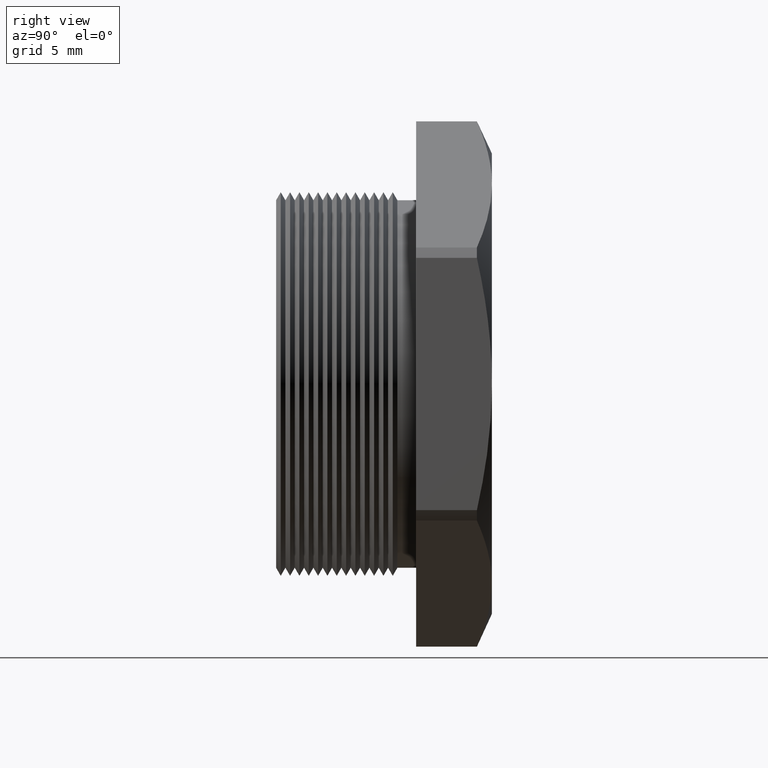
[diagram: clean part render]
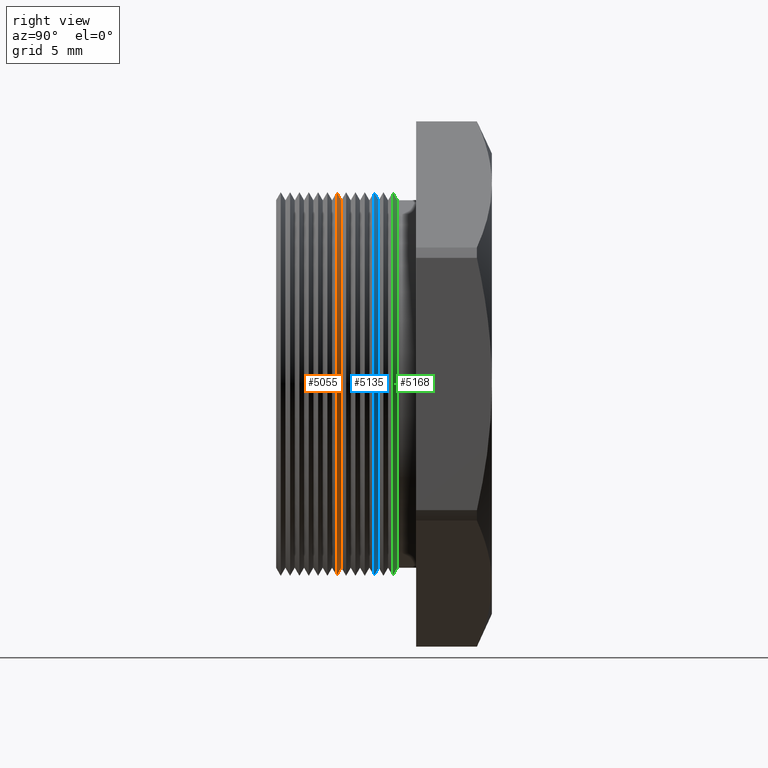
[diagram: same view with three faces highlighted in distinct colors, each labeled with its STEP entity id]
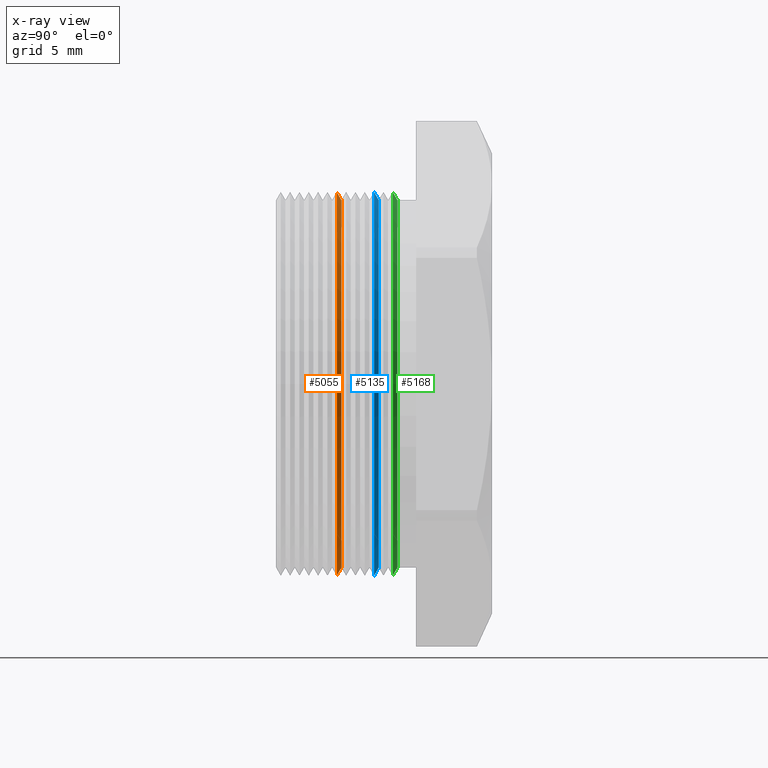
[diagram: x-ray of the same camera — body ghosted, the three highlighted faces saturated]
A machine part, right view with three faces highlighted in distinct colors.
The next image is the same camera in x-ray (body ghosted, the three faces saturated) — at least one of them is partly hidden behind the body in this view.
Their STEP definitions:

[orange] entity #5055 — the highlighted conical surface has half-angle 60 deg.
#3026 = DIRECTION ( 'NONE',  ( -0.0000000000000000000, 1.000000000000000000, -0.0000000000000000000 ) ) ;
#3027 = CARTESIAN_POINT ( 'NONE',  ( 0.0000000000000000000, 0.1415548905829479600, 0.0000000000000000000 ) ) ;
#3028 = AXIS2_PLACEMENT_3D ( 'NONE', #3027, #3026, #3086 ) ;
#3029 = CIRCLE ( 'NONE', #3028, 0.3287738815610546400 ) ;
#3031 = CARTESIAN_POINT ( 'NONE',  ( 4.026318816969966200E-017, 0.1415548905829479600, 0.3287738815610546400 ) ) ;
#3056 = DIRECTION ( 'NONE',  ( 0.0000000000000000000, -1.000000000000000000, 0.0000000000000000000 ) ) ;
#3057 = CARTESIAN_POINT ( 'NONE',  ( 0.0000000000000000000, 0.1495072448100088800, 0.0000000000000000000 ) ) ;
#3058 = AXIS2_PLACEMENT_3D ( 'NONE', #3057, #3056, #3117 ) ;
#3059 = CIRCLE ( 'NONE', #3058, 0.3150000000000000000 ) ;
#3060 = CARTESIAN_POINT ( 'NONE',  ( 0.0000000000000000000, 0.1495072448100088800, -0.3150000000000000000 ) ) ;
#3061 = CARTESIAN_POINT ( 'NONE',  ( 0.0000000000000000000, 0.1415548905829479600, -0.3287738815610546400 ) ) ;
#3069 = DIRECTION ( 'NONE',  ( 1.060575238724907500E-016, -0.4999999999999991100, 0.8660254037844391500 ) ) ;
#3070 = VECTOR ( 'NONE', #3069, 39.37007874015748100 ) ;
#3071 = CARTESIAN_POINT ( 'NONE',  ( 3.857637417314162700E-017, 0.1495072448100088800, 0.3150000000000000000 ) ) ;
#3072 = LINE ( 'NONE', #3071, #3070 ) ;
#3073 = DIRECTION ( 'NONE',  ( 0.0000000000000000000, -0.4999999999999991100, -0.8660254037844391500 ) ) ;
#3074 = VECTOR ( 'NONE', #3073, 39.37007874015748100 ) ;
#3075 = CARTESIAN_POINT ( 'NONE',  ( 0.0000000000000000000, 0.1495072448100088800, -0.3150000000000000000 ) ) ;
#3076 = LINE ( 'NONE', #3075, #3074 ) ;
#3077 = DIRECTION ( 'NONE',  ( 0.0000000000000000000, 0.0000000000000000000, -1.000000000000000000 ) ) ;
#3078 = DIRECTION ( 'NONE',  ( 0.0000000000000000000, -1.000000000000000000, 0.0000000000000000000 ) ) ;
#3079 = CARTESIAN_POINT ( 'NONE',  ( 0.0000000000000000000, 0.1495072448100088800, 0.0000000000000000000 ) ) ;
#3080 = AXIS2_PLACEMENT_3D ( 'NONE', #3079, #3078, #3077 ) ;
#3081 = CONICAL_SURFACE ( 'NONE', #3080, 0.3150000000000000000, 1.047197551196598700 ) ;
#3082 = FACE_OUTER_BOUND ( 'NONE', #5053, .T. ) ;
#3086 = DIRECTION ( 'NONE',  ( 0.0000000000000000000, 0.0000000000000000000, 1.000000000000000000 ) ) ;
#3116 = CARTESIAN_POINT ( 'NONE',  ( 3.857637417314162700E-017, 0.1495072448100088800, 0.3150000000000000000 ) ) ;
#3117 = DIRECTION ( 'NONE',  ( 0.0000000000000000000, 0.0000000000000000000, -1.000000000000000000 ) ) ;
#5049 = VERTEX_POINT ( 'NONE', #3031 ) ;
#5050 = ORIENTED_EDGE ( 'NONE', *, *, #5059, .T. ) ;
#5051 = EDGE_CURVE ( 'NONE', #5049, #5064, #3029, .T. ) ;
#5053 = EDGE_LOOP ( 'NONE', ( #5065, #5050, #5060, #5056 ) ) ;
#5055 = ADVANCED_FACE ( 'NONE', ( #3082 ), #3081, .T. ) ;
#5056 = ORIENTED_EDGE ( 'NONE', *, *, #5057, .F. ) ;
#5057 = EDGE_CURVE ( 'NONE', #5066, #5064, #3076, .T. ) ;
#5059 = EDGE_CURVE ( 'NONE', #5068, #5049, #3072, .T. ) ;
#5060 = ORIENTED_EDGE ( 'NONE', *, *, #5051, .T. ) ;
#5064 = VERTEX_POINT ( 'NONE', #3061 ) ;
#5065 = ORIENTED_EDGE ( 'NONE', *, *, #5067, .T. ) ;
#5066 = VERTEX_POINT ( 'NONE', #3060 ) ;
#5067 = EDGE_CURVE ( 'NONE', #5066, #5068, #3059, .T. ) ;
#5068 = VERTEX_POINT ( 'NONE', #3116 ) ;

[blue] entity #5135 — the highlighted conical surface has half-angle 60 deg.
#3179 = CARTESIAN_POINT ( 'NONE',  ( 3.857637417314162700E-017, 0.2135072448100089100, 0.3150000000000000000 ) ) ;
#3225 = DIRECTION ( 'NONE',  ( 0.0000000000000000000, 0.0000000000000000000, -1.000000000000000000 ) ) ;
#3226 = DIRECTION ( 'NONE',  ( 0.0000000000000000000, -1.000000000000000000, 0.0000000000000000000 ) ) ;
#3227 = CARTESIAN_POINT ( 'NONE',  ( 0.0000000000000000000, 0.2135072448100089100, 0.0000000000000000000 ) ) ;
#3228 = AXIS2_PLACEMENT_3D ( 'NONE', #3227, #3226, #3225 ) ;
#3229 = CONICAL_SURFACE ( 'NONE', #3228, 0.3150000000000000000, 1.047197551196598700 ) ;
#3230 = CARTESIAN_POINT ( 'NONE',  ( 0.0000000000000000000, 0.2135072448100089100, -0.3150000000000000000 ) ) ;
#3231 = FACE_OUTER_BOUND ( 'NONE', #5136, .T. ) ;
#3238 = DIRECTION ( 'NONE',  ( 0.0000000000000000000, 0.0000000000000000000, -1.000000000000000000 ) ) ;
#3239 = DIRECTION ( 'NONE',  ( 0.0000000000000000000, -1.000000000000000000, 0.0000000000000000000 ) ) ;
#3240 = CARTESIAN_POINT ( 'NONE',  ( 0.0000000000000000000, 0.2135072448100089100, 0.0000000000000000000 ) ) ;
#3241 = AXIS2_PLACEMENT_3D ( 'NONE', #3240, #3239, #3238 ) ;
#3242 = CIRCLE ( 'NONE', #3241, 0.3150000000000000000 ) ;
#3292 = CARTESIAN_POINT ( 'NONE',  ( 4.026318816969966200E-017, 0.2055548905829479900, 0.3287738815610546400 ) ) ;
#3293 = DIRECTION ( 'NONE',  ( 0.0000000000000000000, 0.0000000000000000000, 1.000000000000000000 ) ) ;
#3294 = DIRECTION ( 'NONE',  ( -0.0000000000000000000, 1.000000000000000000, -0.0000000000000000000 ) ) ;
#3295 = CARTESIAN_POINT ( 'NONE',  ( 0.0000000000000000000, 0.2055548905829479900, 0.0000000000000000000 ) ) ;
#3296 = AXIS2_PLACEMENT_3D ( 'NONE', #3295, #3294, #3293 ) ;
#3297 = CIRCLE ( 'NONE', #3296, 0.3287738815610546400 ) ;
#3302 = CARTESIAN_POINT ( 'NONE',  ( 0.0000000000000000000, 0.2055548905829479900, -0.3287738815610546400 ) ) ;
#3339 = DIRECTION ( 'NONE',  ( 0.0000000000000000000, -0.4999999999999991100, -0.8660254037844391500 ) ) ;
#3340 = VECTOR ( 'NONE', #3339, 39.37007874015748100 ) ;
#3341 = CARTESIAN_POINT ( 'NONE',  ( 0.0000000000000000000, 0.2135072448100089100, -0.3150000000000000000 ) ) ;
#3342 = LINE ( 'NONE', #3341, #3340 ) ;
#3365 = DIRECTION ( 'NONE',  ( 1.060575238724907500E-016, -0.4999999999999991100, 0.8660254037844391500 ) ) ;
#3366 = VECTOR ( 'NONE', #3365, 39.37007874015748100 ) ;
#3367 = CARTESIAN_POINT ( 'NONE',  ( 3.857637417314162700E-017, 0.2135072448100089100, 0.3150000000000000000 ) ) ;
#3368 = LINE ( 'NONE', #3367, #3366 ) ;
#5127 = ORIENTED_EDGE ( 'NONE', *, *, #5128, .T. ) ;
#5128 = EDGE_CURVE ( 'NONE', #5137, #5129, #3242, .T. ) ;
#5129 = VERTEX_POINT ( 'NONE', #3179 ) ;
#5135 = ADVANCED_FACE ( 'NONE', ( #3231 ), #3229, .T. ) ;
#5136 = EDGE_LOOP ( 'NONE', ( #5127, #5195, #5193, #5205 ) ) ;
#5137 = VERTEX_POINT ( 'NONE', #3230 ) ;
#5162 = VERTEX_POINT ( 'NONE', #3302 ) ;
#5166 = EDGE_CURVE ( 'NONE', #5167, #5162, #3297, .T. ) ;
#5167 = VERTEX_POINT ( 'NONE', #3292 ) ;
#5192 = EDGE_CURVE ( 'NONE', #5129, #5167, #3368, .T. ) ;
#5193 = ORIENTED_EDGE ( 'NONE', *, *, #5166, .T. ) ;
#5195 = ORIENTED_EDGE ( 'NONE', *, *, #5192, .T. ) ;
#5204 = EDGE_CURVE ( 'NONE', #5137, #5162, #3342, .T. ) ;
#5205 = ORIENTED_EDGE ( 'NONE', *, *, #5204, .F. ) ;

[green] entity #5168 — the highlighted conical surface has half-angle 60 deg.
#3280 = CARTESIAN_POINT ( 'NONE',  ( 0.0000000000000000000, 0.2455072448100089100, -0.3150000000000000000 ) ) ;
#3281 = DIRECTION ( 'NONE',  ( 0.0000000000000000000, 0.0000000000000000000, -1.000000000000000000 ) ) ;
#3282 = DIRECTION ( 'NONE',  ( 0.0000000000000000000, -1.000000000000000000, 0.0000000000000000000 ) ) ;
#3283 = CARTESIAN_POINT ( 'NONE',  ( 0.0000000000000000000, 0.2455072448100089100, 0.0000000000000000000 ) ) ;
#3284 = AXIS2_PLACEMENT_3D ( 'NONE', #3283, #3282, #3281 ) ;
#3285 = DIRECTION ( 'NONE',  ( 0.0000000000000000000, 0.0000000000000000000, -1.000000000000000000 ) ) ;
#3286 = DIRECTION ( 'NONE',  ( 0.0000000000000000000, -1.000000000000000000, 0.0000000000000000000 ) ) ;
#3287 = CARTESIAN_POINT ( 'NONE',  ( 0.0000000000000000000, 0.2455072448100089100, 0.0000000000000000000 ) ) ;
#3288 = AXIS2_PLACEMENT_3D ( 'NONE', #3287, #3286, #3285 ) ;
#3289 = CIRCLE ( 'NONE', #3284, 0.3150000000000000000 ) ;
#3290 = CONICAL_SURFACE ( 'NONE', #3288, 0.3150000000000000000, 1.047197551196598700 ) ;
#3291 = FACE_OUTER_BOUND ( 'NONE', #5169, .T. ) ;
#3323 = DIRECTION ( 'NONE',  ( 1.060575238724907500E-016, -0.4999999999999991100, 0.8660254037844391500 ) ) ;
#3324 = VECTOR ( 'NONE', #3323, 39.37007874015748100 ) ;
#3325 = CARTESIAN_POINT ( 'NONE',  ( 3.857637417314162700E-017, 0.2455072448100089100, 0.3150000000000000000 ) ) ;
#3326 = LINE ( 'NONE', #3325, #3324 ) ;
#3327 = CARTESIAN_POINT ( 'NONE',  ( 3.857637417314162700E-017, 0.2455072448100089100, 0.3150000000000000000 ) ) ;
#3328 = CARTESIAN_POINT ( 'NONE',  ( 0.0000000000000000000, 0.2375548905829479900, -0.3287738815610546400 ) ) ;
#3375 = DIRECTION ( 'NONE',  ( 0.0000000000000000000, -0.4999999999999991100, -0.8660254037844391500 ) ) ;
#3376 = VECTOR ( 'NONE', #3375, 39.37007874015748100 ) ;
#3377 = CARTESIAN_POINT ( 'NONE',  ( 0.0000000000000000000, 0.2455072448100089100, -0.3150000000000000000 ) ) ;
#3378 = LINE ( 'NONE', #3377, #3376 ) ;
#3447 = CARTESIAN_POINT ( 'NONE',  ( 4.026318816969966200E-017, 0.2375548905829479900, 0.3287738815610546400 ) ) ;
#3448 = DIRECTION ( 'NONE',  ( 0.0000000000000000000, 0.0000000000000000000, 1.000000000000000000 ) ) ;
#3449 = DIRECTION ( 'NONE',  ( -0.0000000000000000000, 1.000000000000000000, -0.0000000000000000000 ) ) ;
#3450 = CARTESIAN_POINT ( 'NONE',  ( 0.0000000000000000000, 0.2375548905829479900, 0.0000000000000000000 ) ) ;
#3451 = AXIS2_PLACEMENT_3D ( 'NONE', #3450, #3449, #3448 ) ;
#3452 = CIRCLE ( 'NONE', #3451, 0.3287738815610546400 ) ;
#5168 = ADVANCED_FACE ( 'NONE', ( #3291 ), #3290, .T. ) ;
#5169 = EDGE_LOOP ( 'NONE', ( #5170, #5181, #5183, #5220 ) ) ;
#5170 = ORIENTED_EDGE ( 'NONE', *, *, #5171, .T. ) ;
#5171 = EDGE_CURVE ( 'NONE', #5172, #5180, #3289, .T. ) ;
#5172 = VERTEX_POINT ( 'NONE', #3280 ) ;
#5179 = VERTEX_POINT ( 'NONE', #3328 ) ;
#5180 = VERTEX_POINT ( 'NONE', #3327 ) ;
#5181 = ORIENTED_EDGE ( 'NONE', *, *, #5182, .T. ) ;
#5182 = EDGE_CURVE ( 'NONE', #5180, #5246, #3326, .T. ) ;
#5183 = ORIENTED_EDGE ( 'NONE', *, *, #5245, .T. ) ;
#5220 = ORIENTED_EDGE ( 'NONE', *, *, #5221, .F. ) ;
#5221 = EDGE_CURVE ( 'NONE', #5172, #5179, #3378, .T. ) ;
#5245 = EDGE_CURVE ( 'NONE', #5246, #5179, #3452, .T. ) ;
#5246 = VERTEX_POINT ( 'NONE', #3447 ) ;